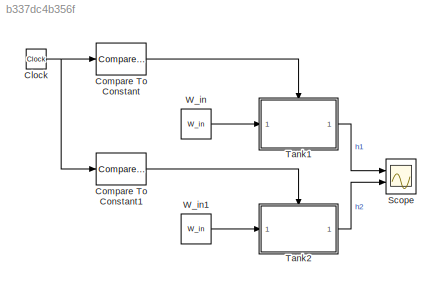
MODEL slx_b337dc4b356f
KIND model
CONFIG AbsTol = auto
CONFIG EnableMultiTasking = on
CONFIG FixedStep = auto
CONFIG MaxStep = auto
CONFIG MinStep = auto
CONFIG PreLoadFcn = rho = 1000; \nA = 4; \ng = 9.81; \nR = 5; \nW_in = 100; \nh0 = 0; \nhmax = 2;
CONFIG RelTol = 1e-3
CONFIG SampleTimeConstraint = Unconstrained
CONFIG Solver = ode45
CONFIG SolverName = ode45
CONFIG StartTime = 0.0
CONFIG StopTime = 250
BLOCK [Clock] Clock
BLOCK [Reference] Compare To Constant  REF=simulink/Logic and Bit
Operations/Compare
To Constant
  Ports = [1, 1]
  SourceBlock = simulink/Logic and Bit\nOperations/Compare\nTo Constant
  SourceProductBaseCode = SL
  SourceProductName = Simulink
  SourceType = Compare To Constant
BLOCK [Reference] Compare To Constant1  REF=simulink/Logic and Bit
Operations/Compare
To Constant
  Ports = [1, 1]
  SourceBlock = simulink/Logic and Bit\nOperations/Compare\nTo Constant
  SourceProductBaseCode = SL
  SourceProductName = Simulink
  SourceType = Compare To Constant
BLOCK [Scope] Scope
  Floating = off
  NumInputPorts = 2
  Ports = [2]
  ScopeSpecificationString = Simulink.scopes.TimeScopeBlockCfg('CurrentConfiguration', extmgr.ConfigurationSet(extmgr.Configuration('Core','General UI',true),extmgr.Configuration('Core','Source UI',true),extmgr.Configuration('Sources','WiredSimulink',true,'DataLoggingVariableName','ScopeData1','DataLoggingSaveFormat','StructureWithTime','DataLoggingLimitDataPoints',true,'DataLoggingDecimation','1','DataLoggingDecimateData',tr...<+2728ch>
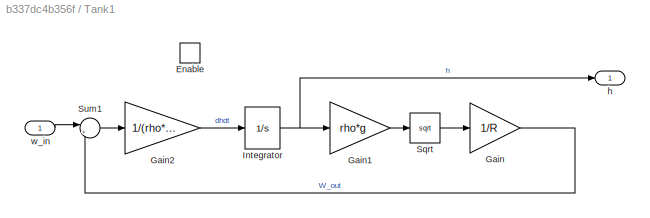
BLOCK [SubSystem] Tank1
  Ports = [1, 1, 1]
  RequestExecContextInheritance = off
BLOCK [EnablePort] Tank1/Enable
  Ports = []
BLOCK [Gain] Tank1/Gain
  Gain = 1/R
BLOCK [Gain] Tank1/Gain1
  Gain = rho*g
BLOCK [Gain] Tank1/Gain2
  Gain = 1/(rho*A)
BLOCK [Integrator] Tank1/Integrator
  AttributesFormatString = IC: %<InitialCondition>
  InitialCondition = h0
  LowerSaturationLimit = 0
  Ports = [1, 1]
  UpperSaturationLimit = hmax
BLOCK [Sqrt] Tank1/Sqrt
BLOCK [Sum] Tank1/Sum1
  IconShape = round
  Inputs = |+-
  Ports = [2, 1]
BLOCK [Outport] Tank1/h
  IconDisplay = Port number
  InitialOutput = h0
BLOCK [Inport] Tank1/w_in
  IconDisplay = Port number
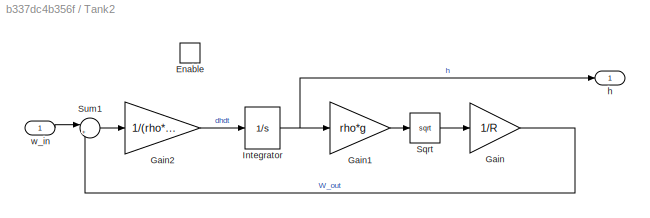
BLOCK [SubSystem] Tank2
  Ports = [1, 1, 1]
  RequestExecContextInheritance = off
BLOCK [EnablePort] Tank2/Enable
  Ports = []
BLOCK [Gain] Tank2/Gain
  Gain = 1/R
BLOCK [Gain] Tank2/Gain1
  Gain = rho*g
BLOCK [Gain] Tank2/Gain2
  Gain = 1/(rho*A)
BLOCK [Integrator] Tank2/Integrator
  AttributesFormatString = IC: %<InitialCondition>
  InitialCondition = h0
  LowerSaturationLimit = 0
  Ports = [1, 1]
  UpperSaturationLimit = hmax
BLOCK [Sqrt] Tank2/Sqrt
BLOCK [Sum] Tank2/Sum1
  IconShape = round
  Inputs = |+-
  Ports = [2, 1]
BLOCK [Outport] Tank2/h
  IconDisplay = Port number
  InitialOutput = h0
BLOCK [Inport] Tank2/w_in
  IconDisplay = Port number
BLOCK [Constant] W_in
  Value = W_in
BLOCK [Constant] W_in1
  Value = W_in
NET Clock:1 -> Compare To Constant1:1, Compare To Constant:1
LINE Compare To Constant1:1 -> Tank2:enable
LINE Compare To Constant:1 -> Tank1:enable
LINE Tank1/Gain1:1 -> Tank1/Sqrt:1
LINE Tank1/Gain2:1 -> Tank1/Integrator:1
LINE Tank1/Gain:1 -> Tank1/Sum1:2
NET Tank1/Integrator:1 -> Tank1/Gain1:1, Tank1/h:1
LINE Tank1/Sqrt:1 -> Tank1/Gain:1
LINE Tank1/Sum1:1 -> Tank1/Gain2:1
LINE Tank1/w_in:1 -> Tank1/Sum1:1
LINE Tank1:1 -> Scope:1
LINE Tank2/Gain1:1 -> Tank2/Sqrt:1
LINE Tank2/Gain2:1 -> Tank2/Integrator:1
LINE Tank2/Gain:1 -> Tank2/Sum1:2
NET Tank2/Integrator:1 -> Tank2/Gain1:1, Tank2/h:1
LINE Tank2/Sqrt:1 -> Tank2/Gain:1
LINE Tank2/Sum1:1 -> Tank2/Gain2:1
LINE Tank2/w_in:1 -> Tank2/Sum1:1
LINE Tank2:1 -> Scope:2
LINE W_in1:1 -> Tank2:1
LINE W_in:1 -> Tank1:1
note: NET lines group one-source signal fan-out (src -> all destinations, sorted); 1:1 wires keep LINE
